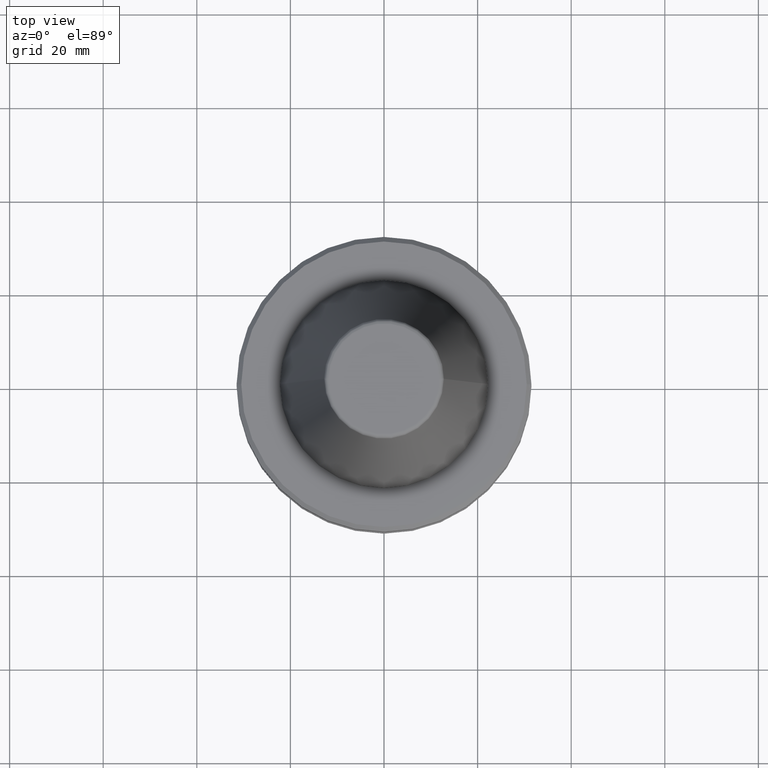
[diagram: clean part render]
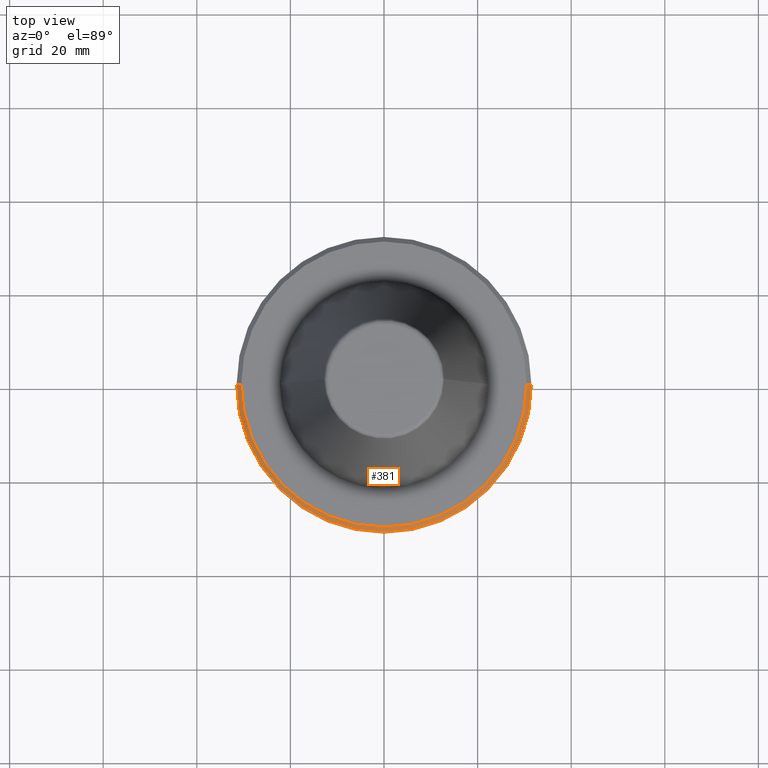
[diagram: same view with one face highlighted and labeled with its STEP entity id]
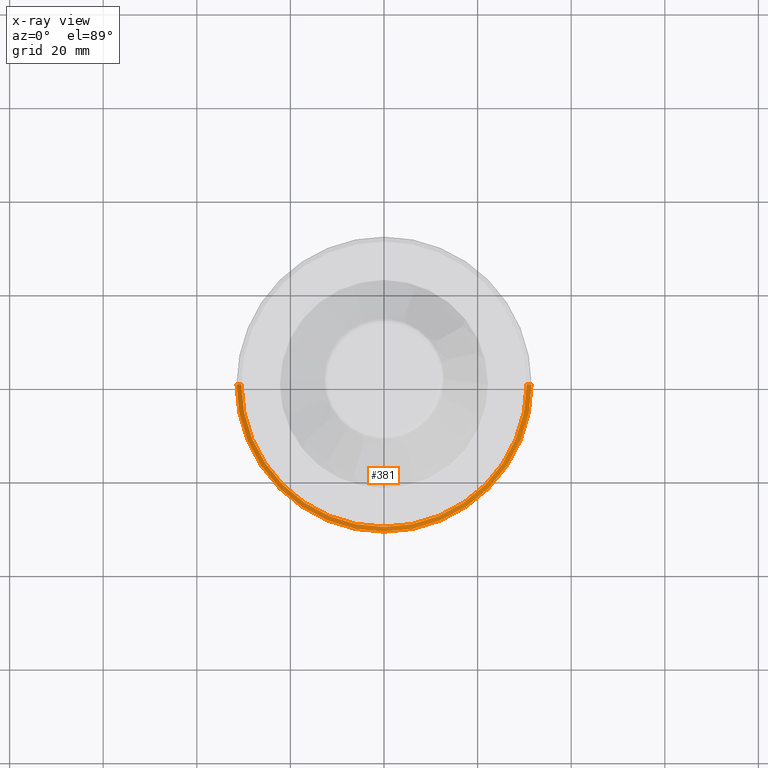
[diagram: x-ray of the same camera — body ghosted, the highlighted face saturated]
A machine part, top view. The second image highlights one B-rep face of the part: STEP entity #381.
The next image is the same camera in x-ray: the body ghosted, the highlighted face saturated — about 0% of this face is hidden behind the body in this view.
In plain terms, the highlighted conical surface has half-angle 45 deg.
Its self-contained STEP definition (entity closure, byte-faithful):
#45 = EDGE_CURVE ( 'NONE', #300, #859, #509, .T. ) ;
#63 = EDGE_CURVE ( 'NONE', #300, #446, #1030, .T. ) ;
#107 = EDGE_LOOP ( 'NONE', ( #1027, #800, #531, #372 ) ) ;
#159 = CARTESIAN_POINT ( 'NONE',  ( 31.49999999999986100, 0.0000000000000000000, -2.311286788340083400 ) ) ;
#166 = FACE_OUTER_BOUND ( 'NONE', #107, .T. ) ;
#169 = VECTOR ( 'NONE', #861, 1000.000000000000000 ) ;
#183 = CONICAL_SURFACE ( 'NONE', #228, 31.49999999999986100, 0.7853981633974482800 ) ;
#203 = AXIS2_PLACEMENT_3D ( 'NONE', #1010, #1049, #823 ) ;
#211 = LINE ( 'NONE', #540, #169 ) ;
#221 = VERTEX_POINT ( 'NONE', #159 ) ;
#228 = AXIS2_PLACEMENT_3D ( 'NONE', #968, #649, #632 ) ;
#300 = VERTEX_POINT ( 'NONE', #728 ) ;
#314 = DIRECTION ( 'NONE',  ( -0.7071067811865474600, 0.0000000000000000000, -0.7071067811865475700 ) ) ;
#347 = CARTESIAN_POINT ( 'NONE',  ( -31.49999999999986100, 0.0000000000000000000, -2.311286788340083400 ) ) ;
#352 = AXIS2_PLACEMENT_3D ( 'NONE', #454, #986, #519 ) ;
#358 = CARTESIAN_POINT ( 'NONE',  ( -31.49999999999986100, 3.857637417314145300E-015, -2.311286788340083400 ) ) ;
#372 = ORIENTED_EDGE ( 'NONE', *, *, #484, .T. ) ;
#381 = ADVANCED_FACE ( 'NONE', ( #166 ), #183, .T. ) ;
#446 = VERTEX_POINT ( 'NONE', #358 ) ;
#452 = EDGE_CURVE ( 'NONE', #859, #221, #211, .T. ) ;
#454 = CARTESIAN_POINT ( 'NONE',  ( 0.0000000000000000000, 0.0000000000000000000, -1.311286788340082500 ) ) ;
#484 = EDGE_CURVE ( 'NONE', #446, #221, #1052, .T. ) ;
#509 = CIRCLE ( 'NONE', #352, 30.49999999999986100 ) ;
#519 = DIRECTION ( 'NONE',  ( 1.000000000000000000, 0.0000000000000000000, 0.0000000000000000000 ) ) ;
#531 = ORIENTED_EDGE ( 'NONE', *, *, #63, .T. ) ;
#540 = CARTESIAN_POINT ( 'NONE',  ( 31.49999999999986100, 3.857637417314145300E-015, -2.311286788340083400 ) ) ;
#632 = DIRECTION ( 'NONE',  ( -1.000000000000000000, 0.0000000000000000000, 0.0000000000000000000 ) ) ;
#649 = DIRECTION ( 'NONE',  ( 0.0000000000000000000, 0.0000000000000000000, -1.000000000000000000 ) ) ;
#728 = CARTESIAN_POINT ( 'NONE',  ( -30.49999999999986100, 0.0000000000000000000, -1.311286788340082500 ) ) ;
#800 = ORIENTED_EDGE ( 'NONE', *, *, #45, .F. ) ;
#823 = DIRECTION ( 'NONE',  ( 1.000000000000000000, 0.0000000000000000000, 0.0000000000000000000 ) ) ;
#859 = VERTEX_POINT ( 'NONE', #953 ) ;
#861 = DIRECTION ( 'NONE',  ( 0.7071067811865474600, 8.659560562354931600E-017, -0.7071067811865475700 ) ) ;
#953 = CARTESIAN_POINT ( 'NONE',  ( 30.49999999999986100, 3.796405077356777800E-015, -1.311286788340082500 ) ) ;
#968 = CARTESIAN_POINT ( 'NONE',  ( 0.0000000000000000000, 0.0000000000000000000, -2.311286788340083400 ) ) ;
#984 = VECTOR ( 'NONE', #314, 1000.000000000000000 ) ;
#986 = DIRECTION ( 'NONE',  ( -0.0000000000000000000, -0.0000000000000000000, 1.000000000000000000 ) ) ;
#1010 = CARTESIAN_POINT ( 'NONE',  ( 0.0000000000000000000, 0.0000000000000000000, -2.311286788340083400 ) ) ;
#1027 = ORIENTED_EDGE ( 'NONE', *, *, #452, .F. ) ;
#1030 = LINE ( 'NONE', #347, #984 ) ;
#1049 = DIRECTION ( 'NONE',  ( -0.0000000000000000000, -0.0000000000000000000, 1.000000000000000000 ) ) ;
#1052 = CIRCLE ( 'NONE', #203, 31.49999999999986100 ) ;